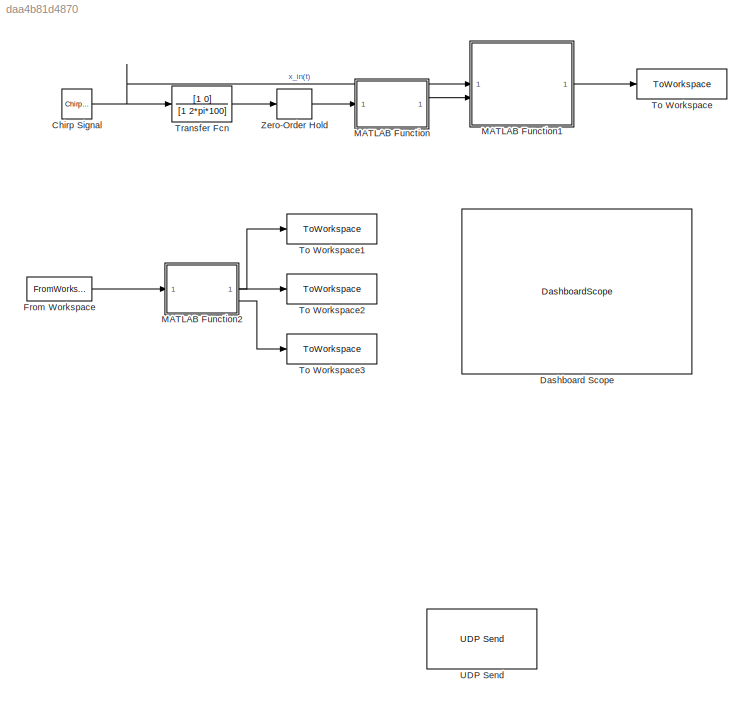
MODEL slx_daa4b81d4870
KIND model
CONFIG AbsTol = auto
CONFIG EnableMultiTasking = off
CONFIG FixedStep = auto
CONFIG MaxStep = auto
CONFIG MinStep = auto
CONFIG RelTol = 1e-3
CONFIG SampleTimeConstraint = Unconstrained
CONFIG SolverName = VariableStepAuto
CONFIG StartTime = 0.0
CONFIG StopTime = 10.0
BLOCK [Reference] Chirp Signal  REF=simulink/Sources/Chirp Signal
  SourceBlock = simulink/Sources/Chirp Signal
  SourceType = chirp
BLOCK [DashboardScope] Dashboard Scope
  Commented = on
BLOCK [FromWorkspace] From Workspace
  Commented = on
  OutputAfterFinalValue = Holding final value
  SampleTime = 1e-4
  VariableName = raw_stream_with_time
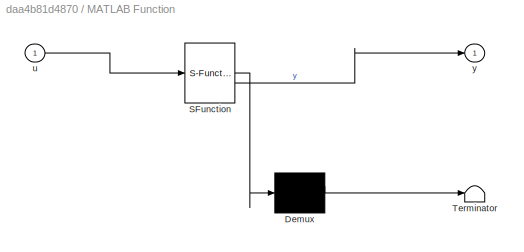
BLOCK [SubSystem] MATLAB Function
  ErrorFcn = Stateflow.Translate.translate
  PermitHierarchicalResolution = ExplicitOnly
  SFBlockType = MATLAB Function
  TreatAsAtomicUnit = on
BLOCK [Demux] MATLAB Function/ Demux 
  Outputs = 1
BLOCK [S-Function] MATLAB Function/ SFunction 
  EnableBusSupport = on
  FunctionName = sf_sfun
  PortCounts = [1 2]
  SFcnIsStateOwnerBlock = off
  SFunctionDeploymentMode = off
  Tag = Stateflow S-Function 2
BLOCK [Terminator] MATLAB Function/ Terminator 
BLOCK [Inport] MATLAB Function/u
BLOCK [Outport] MATLAB Function/y
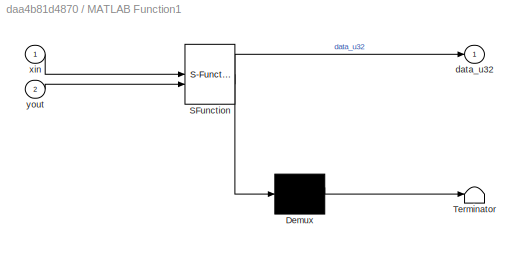
BLOCK [SubSystem] MATLAB Function1
  ErrorFcn = Stateflow.Translate.translate
  PermitHierarchicalResolution = ExplicitOnly
  SFBlockType = MATLAB Function
  TreatAsAtomicUnit = on
BLOCK [Demux] MATLAB Function1/ Demux 
  Outputs = 1
BLOCK [S-Function] MATLAB Function1/ SFunction 
  EnableBusSupport = on
  FunctionName = sf_sfun
  PortCounts = [2 2]
  SFcnIsStateOwnerBlock = off
  SFunctionDeploymentMode = off
  Tag = Stateflow S-Function 1
BLOCK [Terminator] MATLAB Function1/ Terminator 
BLOCK [Outport] MATLAB Function1/data_u32
BLOCK [Inport] MATLAB Function1/xin
BLOCK [Inport] MATLAB Function1/yout
  Port = 2
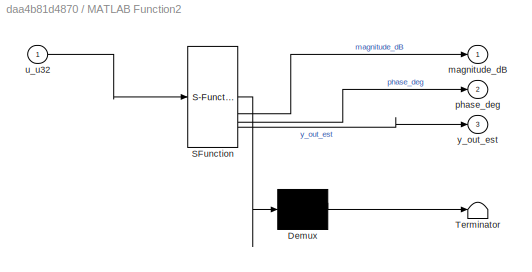
BLOCK [SubSystem] MATLAB Function2
  Commented = on
  ErrorFcn = Stateflow.Translate.translate
  PermitHierarchicalResolution = ExplicitOnly
  SFBlockType = MATLAB Function
  TreatAsAtomicUnit = on
BLOCK [Demux] MATLAB Function2/ Demux 
  Outputs = 1
BLOCK [S-Function] MATLAB Function2/ SFunction 
  EnableBusSupport = on
  FunctionName = sf_sfun
  PortCounts = [1 4]
  SFcnIsStateOwnerBlock = off
  SFunctionDeploymentMode = off
  Tag = Stateflow S-Function 3
BLOCK [Terminator] MATLAB Function2/ Terminator 
BLOCK [Outport] MATLAB Function2/magnitude_dB
BLOCK [Outport] MATLAB Function2/phase_deg
  Port = 2
BLOCK [Inport] MATLAB Function2/u_u32
BLOCK [Outport] MATLAB Function2/y_out_est
  Port = 3
BLOCK [ToWorkspace] To Workspace
  FixptAsFi = on
  MaxDataPoints = inf
  SampleTime = 1e-4
  SaveFormat = Timeseries
  VariableName = raw_stream
BLOCK [ToWorkspace] To Workspace1
  Commented = on
  FixptAsFi = on
  MaxDataPoints = inf
  SampleTime = -1
  SaveFormat = Timeseries
  VariableName = magnitude_dB
BLOCK [ToWorkspace] To Workspace2
  Commented = on
  FixptAsFi = on
  MaxDataPoints = inf
  SampleTime = -1
  SaveFormat = Timeseries
  VariableName = phase_deg
BLOCK [ToWorkspace] To Workspace3
  Commented = on
  FixptAsFi = on
  MaxDataPoints = inf
  SampleTime = -1
  SaveFormat = Timeseries
  VariableName = y_out_est
BLOCK [TransferFcn] Transfer Fcn
  Denominator = [1 2*pi*100]
  Numerator = [1 0]
BLOCK [Reference] UDP Send  REF=c2838x_M4_lib/UDP Send
  SourceBlock = c2838x_M4_lib/UDP Send
  SourceType = codertarget.armM4.blocks.UdpSend
BLOCK [ZeroOrderHold] Zero-Order Hold
  SampleTime = 1e-4
NET Chirp Signal:1 -> MATLAB Function1:1, Transfer Fcn:1
LINE From Workspace:1 -> MATLAB Function2:1
LINE MATLAB Function1:1 -> To Workspace:1
LINE MATLAB Function2:1 -> To Workspace1:1
LINE MATLAB Function2:2 -> To Workspace2:1
LINE MATLAB Function2:3 -> To Workspace3:1
LINE MATLAB Function:1 -> MATLAB Function1:2
LINE Transfer Fcn:1 -> Zero-Order Hold:1
LINE Zero-Order Hold:1 -> MATLAB Function:1
note: NET lines group one-source signal fan-out (src -> all destinations, sorted); 1:1 wires keep LINE
CHART MATLAB Function states=1 transitions=1
  STATE_LABEL 'eML_blk_kernel()'
  STATE_LABEL 'SCRIPT:\nfunction y = fcn(u)\n    Vref = 10;          % ±5V -> total range 10V\n    N = 16;\n    q = Vref / 2^N;\n    y = round(u / q) * q;\n    y = max(-5, min(5, y));  % clamp\nend\n'
CHART MATLAB Function2 states=1 transitions=1
  STATE_LABEL 'eML_blk_kernel()'
  STATE_LABEL "SCRIPT:\nfunction [magnitude_dB, phase_deg, y_out_est] = fcn(u_u32)\n\n% 输入：u_u32 - 来自 From Workspace 的 uint32 数据流\n% 输出：\n%   magnitude_dB: 幅频响应（dB）\n%   phase_deg: 相频响应（度）\n%   y_out_est: 预测输出（可选）\n\ncoder.extrinsic('process_raw_data');  % 调用外部函数（因为涉及 FFT/Hilbert）\n\n% 调用封装好的处理函数\n[mag, phase, yest] = process_raw_data(u_u32);\n\n% 返回输出（注意大小要匹配）\nmagnitude_dB = mag;\nphase_deg = phase;\ny_out_est = yest;\nassert(l...<+105ch>"
CHART MATLAB Function1 states=1 transitions=1
  STATE_LABEL 'eML_blk_kernel()'
  STATE_LABEL 'SCRIPT:\nfunction data_u32 = pack_data(xin, yout)\n% 归一化到 [-1, 1] 并映射到 [0, 65535]\n\n    % 假设输入信号范围是 [-1, 1]，扩展为 [-A, A]\n    A = 1;  % 根据实际调整\n\n    % 限制范围\n    xin = max(-A, min(A, xin));\n    yout = max(-A, min(A, yout));\n\n    % 映射到 [0, 65535]\n    x_uint = uint32((xin + A) / (2*A) * 65535);\n    y_uint = uint32((yout + A) / (2*A) * 65535);\n\n    % 组合成 uint32: 高16位是 xin, 低16位是 yout\n    data_u32 = bitshift(...<+22ch>'
CHART  states=0 transitions=0
CHART  states=0 transitions=0
CHART  states=0 transitions=0
